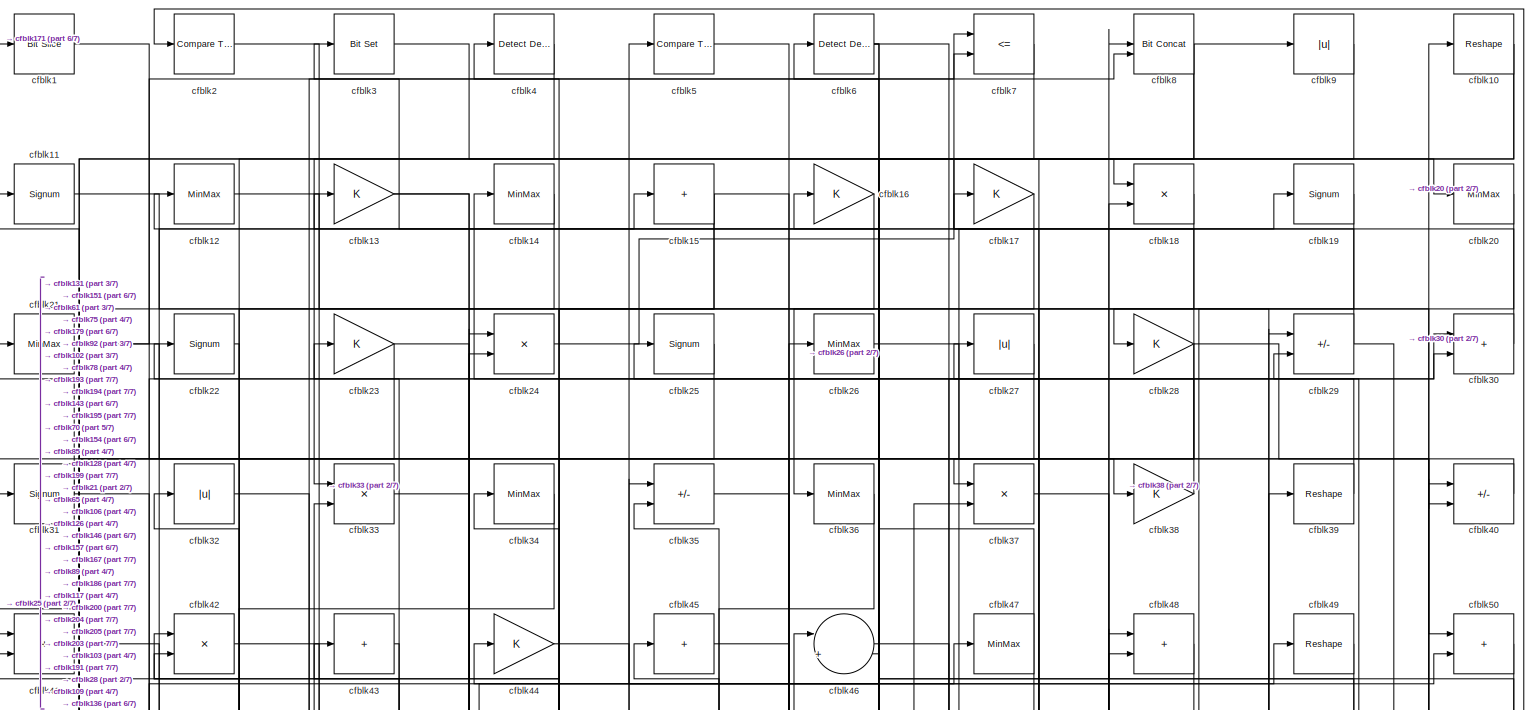
[diagram: root canvas - part 1/7, full width, top band]
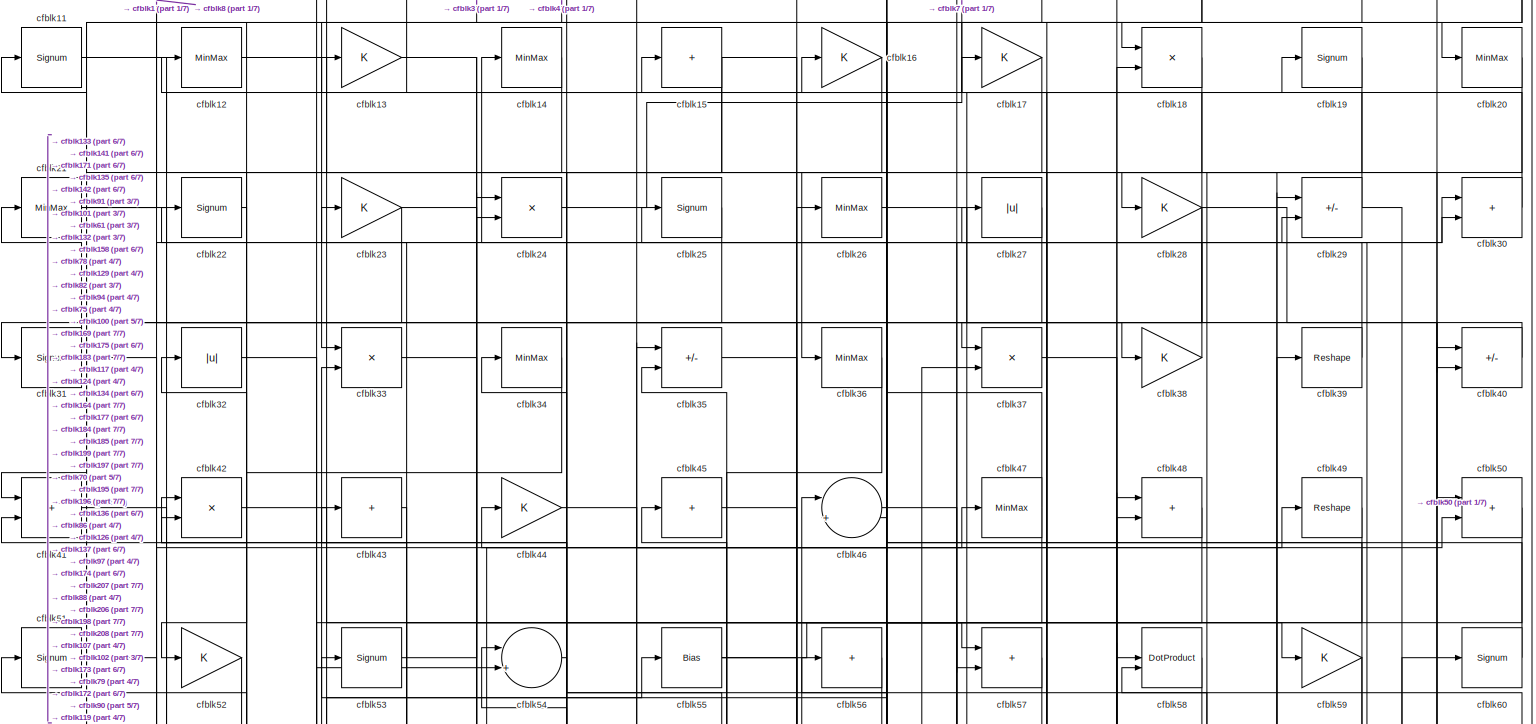
[diagram: root canvas - part 2/7, full width, top band]
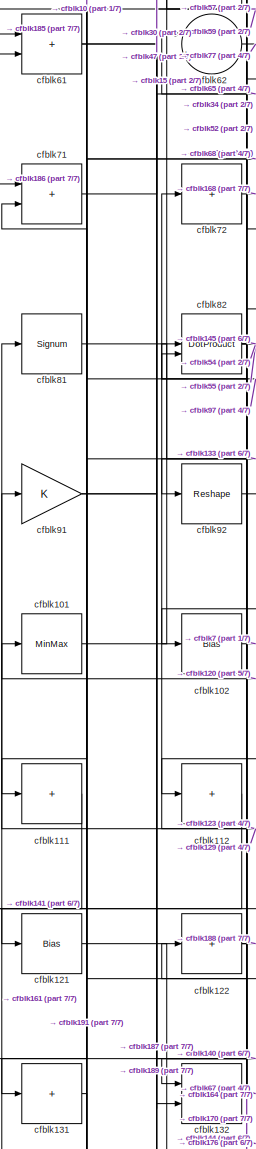
[diagram: root canvas - part 3/7, middle left region]
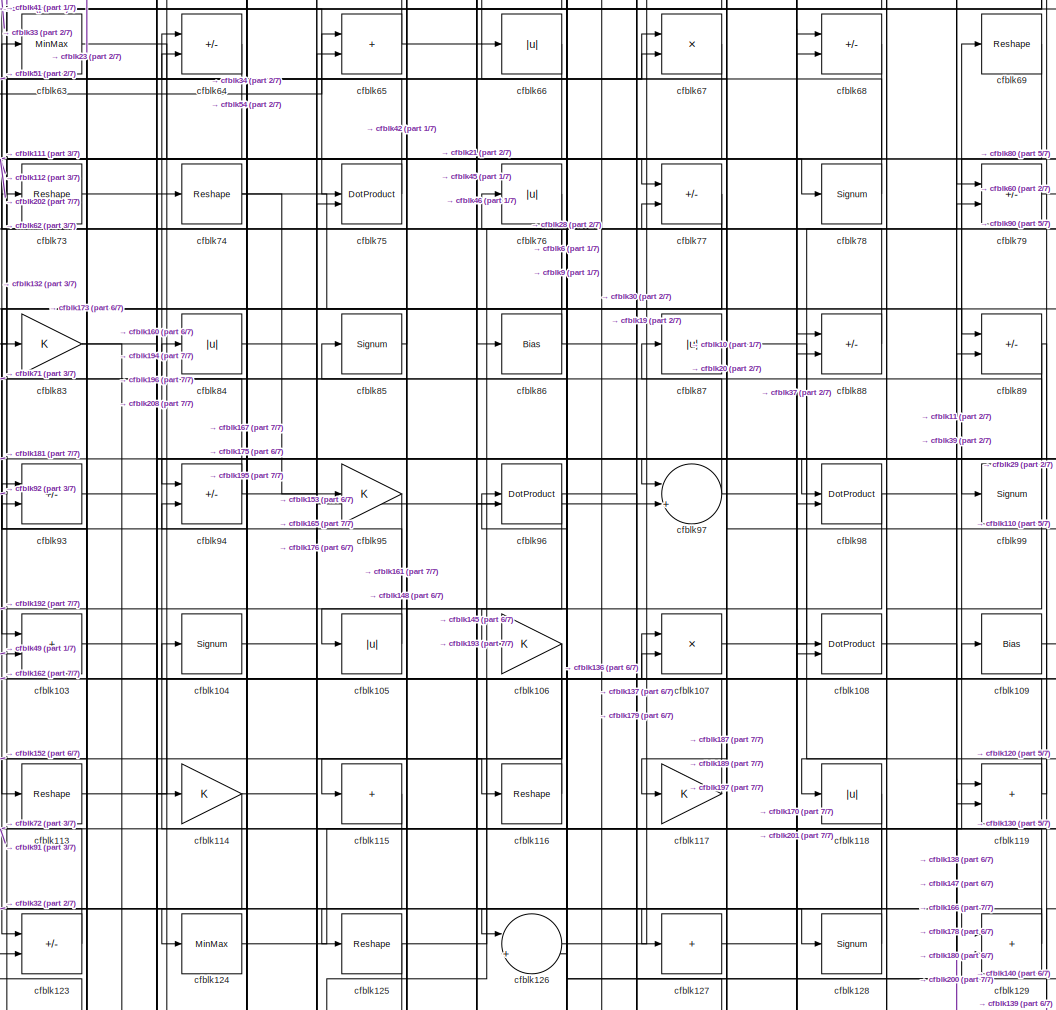
[diagram: root canvas - part 4/7, central region]
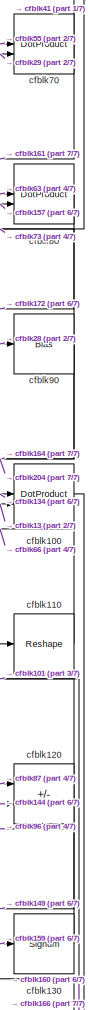
[diagram: root canvas - part 5/7, middle right region]
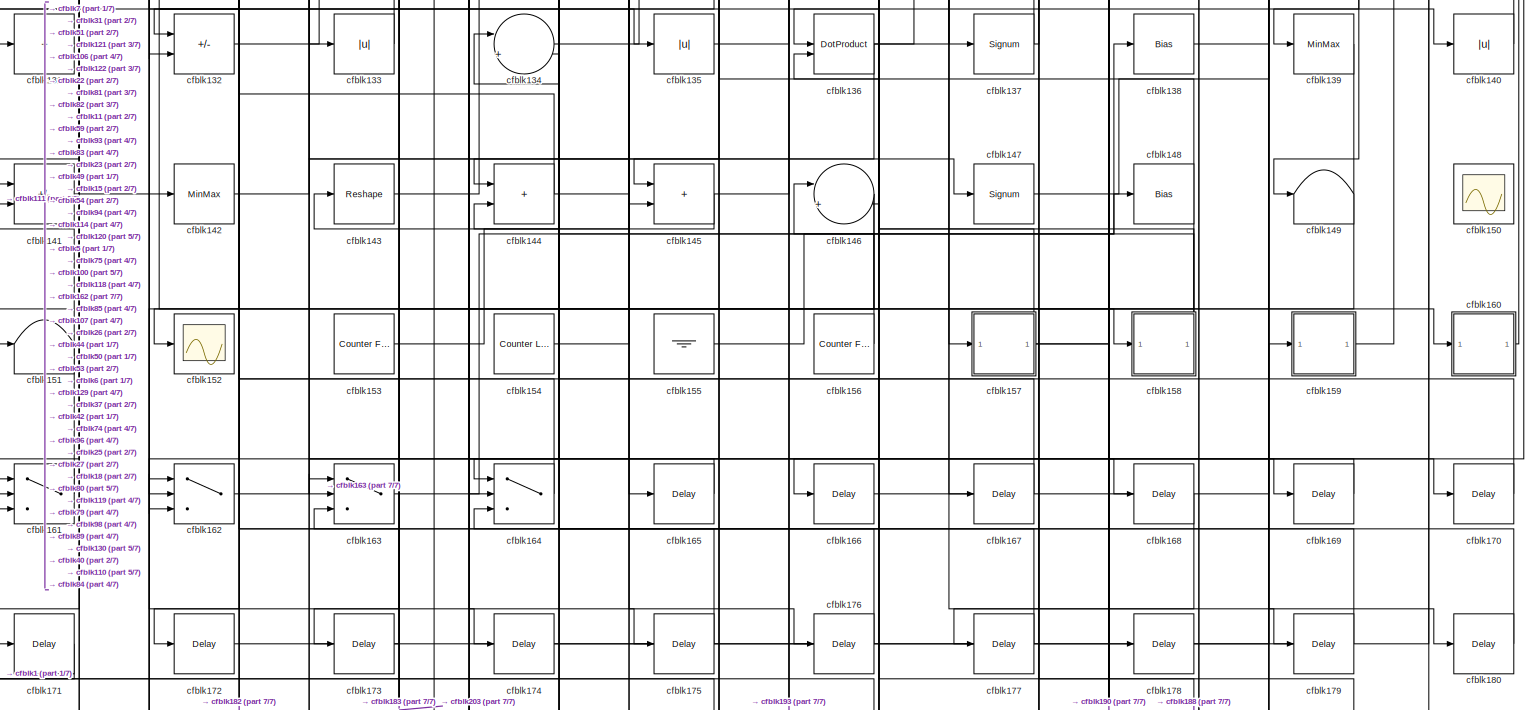
[diagram: root canvas - part 6/7, full width, bottom band]
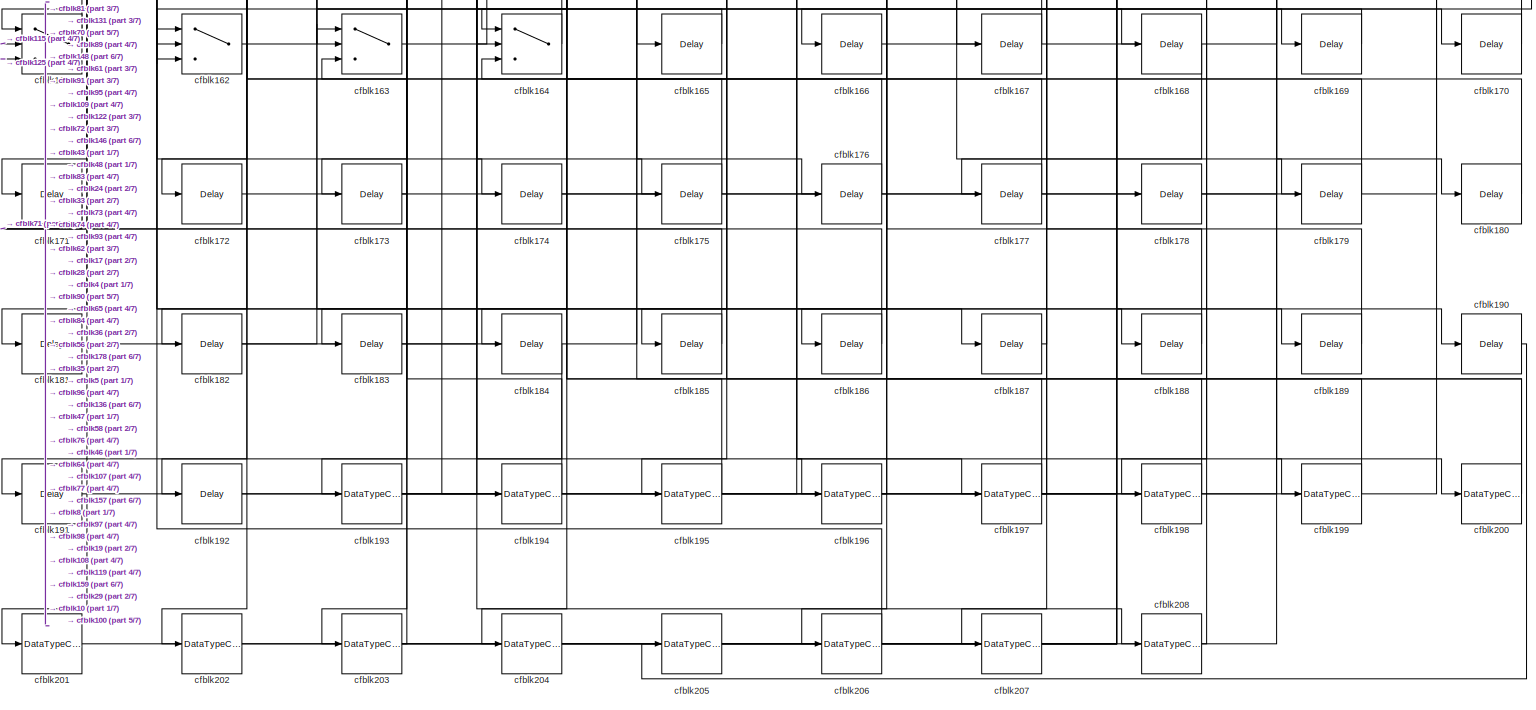
[diagram: root canvas - part 7/7, full width, bottom band]
MODEL slx_a3a0ca1e1958
KIND model
CONFIG AbsTol = auto
CONFIG EnableMultiTasking = off
CONFIG FixedStep = auto
CONFIG MaxStep = auto
CONFIG MinStep = auto
CONFIG RelTol = 1e-3
CONFIG SampleTimeConstraint = Unconstrained
CONFIG SolverName = VariableStepAuto
CONFIG StartTime = 0.0
CONFIG StopTime = 10.0
BLOCK [Reference] cfblk1  REF=hdlsllib/Logic and Bit
Operations/Bit Slice
  SourceBlock = hdlsllib/Logic and Bit\nOperations/Bit Slice
  SourceType = Bit Slice
BLOCK [Reshape] cfblk10
BLOCK [DotProduct] cfblk100
  OutDataTypeStr = Inherit: Inherit via internal rule
BLOCK [MinMax] cfblk101
BLOCK [Bias] cfblk102
  Bias = 0.0
  SaturateOnIntegerOverflow = off
BLOCK [Sum] cfblk103
  IconShape = rectangular
BLOCK [Signum] cfblk104
BLOCK [Abs] cfblk105
  SaturateOnIntegerOverflow = off
BLOCK [Gain] cfblk106
BLOCK [Product] cfblk107
  Inputs = */
  RndMeth = Zero
  SaturateOnIntegerOverflow = on
BLOCK [DotProduct] cfblk108
  OutDataTypeStr = Inherit: Inherit via internal rule
BLOCK [Bias] cfblk109
  Bias = 0.0
  SaturateOnIntegerOverflow = off
BLOCK [Signum] cfblk11
BLOCK [Reshape] cfblk110
BLOCK [Sum] cfblk111
  IconShape = rectangular
  Inputs = +
BLOCK [Sum] cfblk112
  IconShape = rectangular
  Inputs = +
BLOCK [Reshape] cfblk113
BLOCK [Gain] cfblk114
BLOCK [Sum] cfblk115
  IconShape = rectangular
  Inputs = +
BLOCK [Reshape] cfblk116
BLOCK [Gain] cfblk117
BLOCK [Abs] cfblk118
  SaturateOnIntegerOverflow = off
BLOCK [Sum] cfblk119
  IconShape = rectangular
BLOCK [MinMax] cfblk12
BLOCK [Sum] cfblk120
  IconShape = rectangular
  Inputs = +-
BLOCK [Bias] cfblk121
  Bias = 0.0
  SaturateOnIntegerOverflow = off
BLOCK [Sum] cfblk122
  IconShape = rectangular
  Inputs = +
BLOCK [Sum] cfblk123
  IconShape = rectangular
  Inputs = +-
BLOCK [MinMax] cfblk124
BLOCK [Reshape] cfblk125
BLOCK [Sum] cfblk126
  Inputs = |++
BLOCK [Sum] cfblk127
  IconShape = rectangular
  Inputs = +
BLOCK [Signum] cfblk128
BLOCK [Sum] cfblk129
  IconShape = rectangular
BLOCK [Gain] cfblk13
BLOCK [Signum] cfblk130
BLOCK [Sum] cfblk131
  IconShape = rectangular
  Inputs = +
BLOCK [Sum] cfblk132
  IconShape = rectangular
  Inputs = +-
BLOCK [Abs] cfblk133
  SaturateOnIntegerOverflow = off
BLOCK [Sum] cfblk134
  Inputs = |++
BLOCK [Abs] cfblk135
  SaturateOnIntegerOverflow = off
BLOCK [DotProduct] cfblk136
  OutDataTypeStr = Inherit: Inherit via internal rule
BLOCK [Signum] cfblk137
BLOCK [Bias] cfblk138
  Bias = 0.0
  SaturateOnIntegerOverflow = off
BLOCK [MinMax] cfblk139
BLOCK [MinMax] cfblk14
BLOCK [Abs] cfblk140
  SaturateOnIntegerOverflow = off
BLOCK [Sum] cfblk141
  IconShape = rectangular
  Inputs = +-
BLOCK [MinMax] cfblk142
BLOCK [Reshape] cfblk143
BLOCK [Sum] cfblk144
  IconShape = rectangular
BLOCK [Sum] cfblk145
  IconShape = rectangular
BLOCK [Sum] cfblk146
  Inputs = |++
BLOCK [Signum] cfblk147
BLOCK [Bias] cfblk148
  Bias = 0.0
  SaturateOnIntegerOverflow = off
BLOCK [Terminator] cfblk149
BLOCK [Sum] cfblk15
  IconShape = rectangular
  Inputs = +
BLOCK [Scope] cfblk150
  Floating = on
  NumInputPorts = 1
  ScopeSpecificationString = Simulink.scopes.TimeScopeBlockCfg('CurrentConfiguration', extmgr.ConfigurationSet(extmgr.Configuration('Core','General UI',true,'FigureColor',[0.156862745098039 0.156862745098039 0.156862745098039]),extmgr.Configuration('Core','Source UI',true),extmgr.Configuration('Sources','WiredSimulink',true,'DataLoggingVariableName','ScopeData1','DataLoggingSaveFormat','StructureWithTime','DataLoggingLimitDat...<+2713ch>
BLOCK [Terminator] cfblk151
BLOCK [Scope] cfblk152
  Floating = off
  NumInputPorts = 1
  ScopeSpecificationString = Simulink.scopes.TimeScopeBlockCfg('CurrentConfiguration', extmgr.ConfigurationSet(extmgr.Configuration('Core','General UI',true),extmgr.Configuration('Core','Source UI',true),extmgr.Configuration('Sources','WiredSimulink',true,'DataLoggingVariableName','ScopeData2','DataLoggingSaveFormat','Array','DataLoggingLimitDataPoints',true,'DataLoggingDecimation','1'),extmgr.Configuration('Visuals','Time Do...<+868ch>
BLOCK [Reference] cfblk153  REF=hdlsllib/Sources/Counter
Free-Running
  SourceBlock = hdlsllib/Sources/Counter\nFree-Running
  SourceType = Counter Free-Running
BLOCK [Reference] cfblk154  REF=hdlsllib/Sources/Counter
Limited
  SourceBlock = hdlsllib/Sources/Counter\nLimited
  SourceType = Counter Limited
BLOCK [Ground] cfblk155
BLOCK [Reference] cfblk156  REF=hdlsllib/Sources/Counter
Free-Running
  SourceBlock = hdlsllib/Sources/Counter\nFree-Running
  SourceType = Counter Free-Running
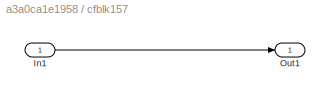
BLOCK [SubSystem] cfblk157
  LibrarySourceBlock = hdlsllib/Ports &\nSubsystems/Subsystem
BLOCK [Inport] cfblk157/In1
BLOCK [Outport] cfblk157/Out1
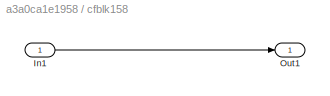
BLOCK [SubSystem] cfblk158
  LibrarySourceBlock = hdlsllib/Ports &\nSubsystems/Subsystem
BLOCK [Inport] cfblk158/In1
BLOCK [Outport] cfblk158/Out1
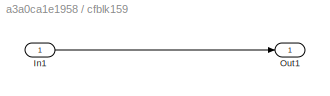
BLOCK [SubSystem] cfblk159
  LibrarySourceBlock = hdlsllib/Ports &\nSubsystems/Subsystem
BLOCK [Inport] cfblk159/In1
BLOCK [Outport] cfblk159/Out1
BLOCK [Gain] cfblk16
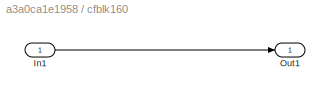
BLOCK [SubSystem] cfblk160
  LibrarySourceBlock = hdlsllib/Ports &\nSubsystems/Subsystem
BLOCK [Inport] cfblk160/In1
BLOCK [Outport] cfblk160/Out1
BLOCK [Switch] cfblk161
  InputSameDT = off
  SaturateOnIntegerOverflow = off
BLOCK [Switch] cfblk162
  InputSameDT = off
  SaturateOnIntegerOverflow = off
BLOCK [Switch] cfblk163
  InputSameDT = off
  SaturateOnIntegerOverflow = off
BLOCK [Switch] cfblk164
  InputSameDT = off
  SaturateOnIntegerOverflow = off
BLOCK [Delay] cfblk165
  InputPortMap = u0
  SampleTime = 1
BLOCK [Delay] cfblk166
  InputPortMap = u0
  SampleTime = 1
BLOCK [Delay] cfblk167
  InputPortMap = u0
  SampleTime = 1
BLOCK [Delay] cfblk168
  InputPortMap = u0
  SampleTime = 1
BLOCK [Delay] cfblk169
  InputPortMap = u0
  SampleTime = 1
BLOCK [Gain] cfblk17
BLOCK [Delay] cfblk170
  InputPortMap = u0
  SampleTime = 1
BLOCK [Delay] cfblk171
  InputPortMap = u0
  SampleTime = 1
BLOCK [Delay] cfblk172
  InputPortMap = u0
  SampleTime = 1
BLOCK [Delay] cfblk173
  InputPortMap = u0
  SampleTime = 1
BLOCK [Delay] cfblk174
  InputPortMap = u0
  SampleTime = 1
BLOCK [Delay] cfblk175
  InputPortMap = u0
  SampleTime = 1
BLOCK [Delay] cfblk176
  InputPortMap = u0
  SampleTime = 1
BLOCK [Delay] cfblk177
  InputPortMap = u0
  SampleTime = 1
BLOCK [Delay] cfblk178
  InputPortMap = u0
  SampleTime = 1
BLOCK [Delay] cfblk179
  InputPortMap = u0
  SampleTime = 1
BLOCK [Product] cfblk18
  Inputs = */
  RndMeth = Zero
  SaturateOnIntegerOverflow = on
BLOCK [Delay] cfblk180
  InputPortMap = u0
  SampleTime = 1
BLOCK [Delay] cfblk181
  InputPortMap = u0
  SampleTime = 1
BLOCK [Delay] cfblk182
  InputPortMap = u0
  SampleTime = 1
BLOCK [Delay] cfblk183
  InputPortMap = u0
  SampleTime = 1
BLOCK [Delay] cfblk184
  InputPortMap = u0
  SampleTime = 1
BLOCK [Delay] cfblk185
  InputPortMap = u0
  SampleTime = 1
BLOCK [Delay] cfblk186
  InputPortMap = u0
  SampleTime = 1
BLOCK [Delay] cfblk187
  InputPortMap = u0
  SampleTime = 1
BLOCK [Delay] cfblk188
  InputPortMap = u0
  SampleTime = 1
BLOCK [Delay] cfblk189
  InputPortMap = u0
  SampleTime = 1
BLOCK [Signum] cfblk19
BLOCK [Delay] cfblk190
  InputPortMap = u0
  SampleTime = 1
BLOCK [Delay] cfblk191
  InputPortMap = u0
  SampleTime = 1
BLOCK [Delay] cfblk192
  InputPortMap = u0
  SampleTime = 1
BLOCK [DataTypeConversion] cfblk193
  RndMeth = Floor
  SaturateOnIntegerOverflow = off
BLOCK [DataTypeConversion] cfblk194
  OutDataTypeStr = uint8
  RndMeth = Floor
  SaturateOnIntegerOverflow = off
BLOCK [DataTypeConversion] cfblk195
  RndMeth = Floor
  SaturateOnIntegerOverflow = off
BLOCK [DataTypeConversion] cfblk196
  OutDataTypeStr = uint8
  RndMeth = Floor
  SaturateOnIntegerOverflow = off
BLOCK [DataTypeConversion] cfblk197
  RndMeth = Floor
  SaturateOnIntegerOverflow = off
BLOCK [DataTypeConversion] cfblk198
  OutDataTypeStr = uint8
  RndMeth = Floor
  SaturateOnIntegerOverflow = off
BLOCK [DataTypeConversion] cfblk199
  OutDataTypeStr = uint8
  RndMeth = Floor
  SaturateOnIntegerOverflow = off
BLOCK [Reference] cfblk2  REF=hdlsllib/Logic and Bit
Operations/Compare
To Constant
  SourceBlock = hdlsllib/Logic and Bit\nOperations/Compare\nTo Constant
  SourceType = Compare To Constant
BLOCK [MinMax] cfblk20
BLOCK [DataTypeConversion] cfblk200
  RndMeth = Floor
  SaturateOnIntegerOverflow = off
BLOCK [DataTypeConversion] cfblk201
  OutDataTypeStr = uint8
  RndMeth = Floor
  SaturateOnIntegerOverflow = off
BLOCK [DataTypeConversion] cfblk202
  OutDataTypeStr = uint8
  RndMeth = Floor
  SaturateOnIntegerOverflow = off
BLOCK [DataTypeConversion] cfblk203
  RndMeth = Floor
  SaturateOnIntegerOverflow = off
BLOCK [DataTypeConversion] cfblk204
  OutDataTypeStr = uint8
  RndMeth = Floor
  SaturateOnIntegerOverflow = off
BLOCK [DataTypeConversion] cfblk205
  OutDataTypeStr = uint8
  RndMeth = Floor
  SaturateOnIntegerOverflow = off
BLOCK [DataTypeConversion] cfblk206
  OutDataTypeStr = uint8
  RndMeth = Floor
  SaturateOnIntegerOverflow = off
BLOCK [DataTypeConversion] cfblk207
  OutDataTypeStr = uint8
  RndMeth = Floor
  SaturateOnIntegerOverflow = off
BLOCK [DataTypeConversion] cfblk208
  OutDataTypeStr = uint8
  RndMeth = Floor
  SaturateOnIntegerOverflow = off
BLOCK [MinMax] cfblk21
BLOCK [Signum] cfblk22
BLOCK [Gain] cfblk23
BLOCK [Product] cfblk24
  Inputs = */
  RndMeth = Zero
  SaturateOnIntegerOverflow = on
BLOCK [Signum] cfblk25
BLOCK [MinMax] cfblk26
BLOCK [Abs] cfblk27
  SaturateOnIntegerOverflow = off
BLOCK [Gain] cfblk28
BLOCK [Sum] cfblk29
  IconShape = rectangular
  Inputs = +-
BLOCK [Reference] cfblk3  REF=simulink/Logic and Bit
Operations/Bit Set
  LibrarySourceBlock = hdlsllib/Logic and Bit\nOperations/Bit Set
  SourceBlock = simulink/Logic and Bit\nOperations/Bit Set
  SourceType = Bit Set
BLOCK [Sum] cfblk30
  IconShape = rectangular
BLOCK [Signum] cfblk31
BLOCK [Abs] cfblk32
  SaturateOnIntegerOverflow = off
BLOCK [Product] cfblk33
  Inputs = */
  RndMeth = Zero
  SaturateOnIntegerOverflow = on
BLOCK [MinMax] cfblk34
BLOCK [Sum] cfblk35
  IconShape = rectangular
  Inputs = +-
BLOCK [MinMax] cfblk36
BLOCK [Product] cfblk37
  Inputs = */
  RndMeth = Zero
  SaturateOnIntegerOverflow = on
BLOCK [Gain] cfblk38
BLOCK [Reshape] cfblk39
BLOCK [Reference] cfblk4  REF=simulink/Logic and Bit
Operations/Detect
Decrease
  LibrarySourceBlock = hdlsllib/Logic and Bit\nOperations/Detect\nDecrease
  SourceBlock = simulink/Logic and Bit\nOperations/Detect\nDecrease
  SourceType = Detect Decrease
BLOCK [Sum] cfblk40
  IconShape = rectangular
  Inputs = +-
BLOCK [Sum] cfblk41
  IconShape = rectangular
BLOCK [Product] cfblk42
  Inputs = */
  RndMeth = Zero
  SaturateOnIntegerOverflow = on
BLOCK [Sum] cfblk43
  IconShape = rectangular
  Inputs = +
BLOCK [Gain] cfblk44
BLOCK [Sum] cfblk45
  IconShape = rectangular
  Inputs = +
BLOCK [Sum] cfblk46
  Inputs = |++
BLOCK [MinMax] cfblk47
BLOCK [Sum] cfblk48
  IconShape = rectangular
BLOCK [Reshape] cfblk49
BLOCK [Reference] cfblk5  REF=hdlsllib/Logic and Bit
Operations/Compare
To Constant
  SourceBlock = hdlsllib/Logic and Bit\nOperations/Compare\nTo Constant
  SourceType = Compare To Constant
BLOCK [Sum] cfblk50
  IconShape = rectangular
BLOCK [Signum] cfblk51
BLOCK [Gain] cfblk52
BLOCK [Signum] cfblk53
BLOCK [Sum] cfblk54
  Inputs = |++
BLOCK [Bias] cfblk55
  Bias = 0.0
  SaturateOnIntegerOverflow = off
BLOCK [Sum] cfblk56
  IconShape = rectangular
  Inputs = +
BLOCK [Sum] cfblk57
  IconShape = rectangular
BLOCK [DotProduct] cfblk58
  OutDataTypeStr = Inherit: Inherit via internal rule
BLOCK [Gain] cfblk59
BLOCK [Reference] cfblk6  REF=simulink/Logic and Bit
Operations/Detect
Decrease
  LibrarySourceBlock = hdlsllib/Logic and Bit\nOperations/Detect\nDecrease
  SourceBlock = simulink/Logic and Bit\nOperations/Detect\nDecrease
  SourceType = Detect Decrease
BLOCK [Signum] cfblk60
BLOCK [Sum] cfblk61
  IconShape = rectangular
BLOCK [Sum] cfblk62
  Inputs = |++
BLOCK [MinMax] cfblk63
BLOCK [Sum] cfblk64
  IconShape = rectangular
  Inputs = +-
BLOCK [Sum] cfblk65
  IconShape = rectangular
BLOCK [Abs] cfblk66
  SaturateOnIntegerOverflow = off
BLOCK [Product] cfblk67
  Inputs = */
  RndMeth = Zero
  SaturateOnIntegerOverflow = on
BLOCK [Sum] cfblk68
  IconShape = rectangular
  Inputs = +-
BLOCK [Reshape] cfblk69
BLOCK [RelationalOperator] cfblk7
  InputSameDT = off
  Operator = <=
  OutDataTypeStr = boolean
BLOCK [DotProduct] cfblk70
  OutDataTypeStr = Inherit: Inherit via internal rule
BLOCK [Sum] cfblk71
  IconShape = rectangular
BLOCK [Sum] cfblk72
  IconShape = rectangular
  Inputs = +
BLOCK [Reshape] cfblk73
BLOCK [Reshape] cfblk74
BLOCK [DotProduct] cfblk75
  OutDataTypeStr = Inherit: Inherit via internal rule
BLOCK [Abs] cfblk76
  SaturateOnIntegerOverflow = off
BLOCK [Sum] cfblk77
  IconShape = rectangular
  Inputs = +-
BLOCK [Signum] cfblk78
BLOCK [Sum] cfblk79
  IconShape = rectangular
  Inputs = +-
BLOCK [Reference] cfblk8  REF=hdlsllib/Logic and Bit
Operations/Bit Concat
  SourceBlock = hdlsllib/Logic and Bit\nOperations/Bit Concat
  SourceType = Bit Concat
BLOCK [DotProduct] cfblk80
  OutDataTypeStr = Inherit: Inherit via internal rule
BLOCK [Signum] cfblk81
BLOCK [DotProduct] cfblk82
  OutDataTypeStr = Inherit: Inherit via internal rule
BLOCK [Gain] cfblk83
BLOCK [Abs] cfblk84
  SaturateOnIntegerOverflow = off
BLOCK [Signum] cfblk85
BLOCK [Bias] cfblk86
  Bias = 0.0
  SaturateOnIntegerOverflow = off
BLOCK [Abs] cfblk87
  SaturateOnIntegerOverflow = off
BLOCK [Sum] cfblk88
  IconShape = rectangular
  Inputs = +-
BLOCK [Sum] cfblk89
  IconShape = rectangular
  Inputs = +-
BLOCK [Abs] cfblk9
  SaturateOnIntegerOverflow = off
BLOCK [Bias] cfblk90
  Bias = 0.0
  SaturateOnIntegerOverflow = off
BLOCK [Gain] cfblk91
BLOCK [Reshape] cfblk92
BLOCK [Sum] cfblk93
  IconShape = rectangular
  Inputs = +-
BLOCK [Sum] cfblk94
  IconShape = rectangular
  Inputs = +-
BLOCK [Gain] cfblk95
BLOCK [DotProduct] cfblk96
  OutDataTypeStr = Inherit: Inherit via internal rule
BLOCK [Sum] cfblk97
  Inputs = |++
BLOCK [DotProduct] cfblk98
  OutDataTypeStr = Inherit: Inherit via internal rule
BLOCK [Signum] cfblk99
LINE cfblk100:1 -> cfblk166:1
LINE cfblk101:1 -> cfblk15:1
LINE cfblk102:1 -> cfblk7:2
LINE cfblk103:1 -> cfblk114:1
LINE cfblk104:1 -> cfblk116:1
LINE cfblk105:1 -> cfblk83:1
NET cfblk106:1 -> cfblk115:1, cfblk152:1
LINE cfblk107:1 -> cfblk39:1
LINE cfblk108:1 -> cfblk200:1
LINE cfblk109:1 -> cfblk2:1
NET cfblk10:1 -> cfblk117:1, cfblk131:1
LINE cfblk110:1 -> cfblk66:1
LINE cfblk111:1 -> cfblk141:2
LINE cfblk112:1 -> cfblk121:1
LINE cfblk113:1 -> cfblk68:2
NET cfblk114:1 -> cfblk123:2, cfblk176:1
LINE cfblk115:1 -> cfblk161:2
LINE cfblk116:1 -> cfblk93:1
LINE cfblk117:1 -> cfblk34:1
LINE cfblk118:1 -> cfblk145:1
NET cfblk119:1 -> cfblk29:2, cfblk64:1
LINE cfblk11:1 -> cfblk79:1
NET cfblk120:1 -> cfblk101:1, cfblk149:1
LINE cfblk121:1 -> cfblk140:1
NET cfblk122:1 -> cfblk188:1, cfblk82:1
LINE cfblk123:1 -> cfblk72:1
LINE cfblk124:1 -> cfblk69:1
NET cfblk125:1 -> cfblk161:3, cfblk68:1
LINE cfblk126:1 -> cfblk19:1
LINE cfblk127:1 -> cfblk88:2
LINE cfblk128:1 -> cfblk104:1
NET cfblk129:1 -> cfblk127:1, cfblk91:1
LINE cfblk12:1 -> cfblk40:2
LINE cfblk130:1 -> cfblk96:1
LINE cfblk131:1 -> cfblk191:1
LINE cfblk132:1 -> cfblk67:1
LINE cfblk133:1 -> cfblk11:1
LINE cfblk134:1 -> cfblk100:1
LINE cfblk135:1 -> cfblk26:1
NET cfblk136:1 -> cfblk129:2, cfblk144:1, cfblk37:2
NET cfblk137:1 -> cfblk25:1, cfblk27:1
LINE cfblk138:1 -> cfblk79:2
LINE cfblk139:1 -> cfblk177:1
NET cfblk13:1 -> cfblk100:2, cfblk57:1
LINE cfblk140:1 -> cfblk84:1
LINE cfblk141:1 -> cfblk174:1
LINE cfblk142:1 -> cfblk147:1
LINE cfblk143:1 -> cfblk49:1
NET cfblk144:1 -> cfblk120:2, cfblk122:1
NET cfblk145:1 -> cfblk107:1, cfblk143:1
NET cfblk146:1 -> cfblk182:1, cfblk183:1
LINE cfblk147:1 -> cfblk119:2
NET cfblk148:1 -> cfblk162:3, cfblk85:1
LINE cfblk14:1 -> cfblk52:1
LINE cfblk153:1 -> cfblk75:2
LINE cfblk154:1 -> cfblk5:1
LINE cfblk155:1 -> cfblk138:1
LINE cfblk156:1 -> cfblk134:1
LINE cfblk157/In1:1 -> cfblk157/Out1:1
NET cfblk157:1 -> cfblk190:1, cfblk44:1, cfblk80:2
LINE cfblk158/In1:1 -> cfblk158/Out1:1
NET cfblk158:1 -> cfblk146:1, cfblk53:1
LINE cfblk159/In1:1 -> cfblk159/Out1:1
LINE cfblk159:1 -> cfblk130:1
NET cfblk15:1 -> cfblk134:2, cfblk171:1, cfblk57:2
LINE cfblk160/In1:1 -> cfblk160/Out1:1
LINE cfblk160:1 -> cfblk110:1
LINE cfblk161:1 -> cfblk81:1
LINE cfblk162:1 -> cfblk109:1
LINE cfblk163:1 -> cfblk148:1
LINE cfblk164:1 -> cfblk62:2
LINE cfblk165:1 -> cfblk163:2
LINE cfblk166:1 -> cfblk119:1
LINE cfblk167:1 -> cfblk64:2
LINE cfblk168:1 -> cfblk207:1
LINE cfblk169:1 -> cfblk162:2
LINE cfblk16:1 -> cfblk36:1
LINE cfblk170:1 -> cfblk62:1
LINE cfblk171:1 -> cfblk1:1
LINE cfblk172:1 -> cfblk40:1
LINE cfblk173:1 -> cfblk93:2
LINE cfblk174:1 -> cfblk18:2
LINE cfblk175:1 -> cfblk94:2
LINE cfblk176:1 -> cfblk82:2
LINE cfblk177:1 -> cfblk54:1
LINE cfblk178:1 -> cfblk89:2
LINE cfblk179:1 -> cfblk42:2
LINE cfblk17:1 -> cfblk184:1
LINE cfblk180:1 -> cfblk144:2
LINE cfblk181:1 -> cfblk65:2
LINE cfblk182:1 -> cfblk163:1
LINE cfblk183:1 -> cfblk24:2
LINE cfblk184:1 -> cfblk201:1
LINE cfblk185:1 -> cfblk61:1
LINE cfblk186:1 -> cfblk71:1
LINE cfblk187:1 -> cfblk107:2
LINE cfblk188:1 -> cfblk136:2
LINE cfblk189:1 -> cfblk77:2
LINE cfblk18:1 -> cfblk28:1
LINE cfblk190:1 -> cfblk205:1
LINE cfblk191:1 -> cfblk10:1
LINE cfblk192:1 -> cfblk74:1
NET cfblk193:1 -> cfblk178:1, cfblk96:2
LINE cfblk194:1 -> cfblk43:1
NET cfblk195:1 -> cfblk4:1, cfblk98:2
LINE cfblk196:1 -> cfblk56:1
NET cfblk197:1 -> cfblk17:1, cfblk29:1, cfblk76:1
LINE cfblk198:1 -> cfblk35:1
LINE cfblk199:1 -> cfblk35:2
LINE cfblk19:1 -> cfblk198:1
LINE cfblk1:1 -> cfblk38:1
NET cfblk200:1 -> cfblk164:3, cfblk8:1
LINE cfblk201:1 -> cfblk108:1
LINE cfblk202:1 -> cfblk108:2
NET cfblk203:1 -> cfblk159:1, cfblk163:3
LINE cfblk204:1 -> cfblk48:1
LINE cfblk205:1 -> cfblk48:2
LINE cfblk206:1 -> cfblk162:1
LINE cfblk207:1 -> cfblk58:1
LINE cfblk208:1 -> cfblk58:2
LINE cfblk20:1 -> cfblk97:1
NET cfblk21:1 -> cfblk86:1, cfblk8:2
LINE cfblk22:1 -> cfblk158:1
NET cfblk23:1 -> cfblk141:1, cfblk175:1
LINE cfblk24:1 -> cfblk18:1
LINE cfblk25:1 -> cfblk41:1
LINE cfblk26:1 -> cfblk50:1
LINE cfblk27:1 -> cfblk31:1
NET cfblk28:1 -> cfblk126:1, cfblk164:1, cfblk3:1, cfblk90:1
NET cfblk29:1 -> cfblk16:1, cfblk70:2
LINE cfblk2:1 -> cfblk78:1
LINE cfblk30:1 -> cfblk7:1
NET cfblk31:1 -> cfblk135:1, cfblk21:1
LINE cfblk32:1 -> cfblk129:1
LINE cfblk33:1 -> cfblk169:1
LINE cfblk34:1 -> cfblk132:1
LINE cfblk35:1 -> cfblk197:1
LINE cfblk36:1 -> cfblk185:1
LINE cfblk37:1 -> cfblk88:1
LINE cfblk38:1 -> cfblk22:1
LINE cfblk39:1 -> cfblk14:1
LINE cfblk3:1 -> cfblk20:1
LINE cfblk40:1 -> cfblk37:1
LINE cfblk41:1 -> cfblk75:1
LINE cfblk42:1 -> cfblk157:1
LINE cfblk43:1 -> cfblk193:1
LINE cfblk44:1 -> cfblk50:2
LINE cfblk45:1 -> cfblk128:1
LINE cfblk46:1 -> cfblk167:1
NET cfblk47:1 -> cfblk186:1, cfblk6:1
LINE cfblk48:1 -> cfblk203:1
LINE cfblk49:1 -> cfblk103:2
LINE cfblk4:1 -> cfblk33:1
LINE cfblk50:1 -> cfblk136:1
LINE cfblk51:1 -> cfblk142:1
LINE cfblk52:1 -> cfblk61:2
LINE cfblk53:1 -> cfblk24:1
LINE cfblk54:1 -> cfblk124:1
NET cfblk55:1 -> cfblk59:1, cfblk70:1
LINE cfblk56:1 -> cfblk195:1
LINE cfblk57:1 -> cfblk132:2
LINE cfblk58:1 -> cfblk206:1
NET cfblk59:1 -> cfblk102:1, cfblk12:1, cfblk173:1
LINE cfblk5:1 -> cfblk199:1
LINE cfblk60:1 -> cfblk13:1
NET cfblk61:1 -> cfblk187:1, cfblk47:1
LINE cfblk62:1 -> cfblk77:1
LINE cfblk63:1 -> cfblk80:1
LINE cfblk64:1 -> cfblk202:1
NET cfblk65:1 -> cfblk42:1, cfblk46:1
LINE cfblk66:1 -> cfblk113:1
LINE cfblk67:1 -> cfblk112:1
LINE cfblk68:1 -> cfblk111:1
LINE cfblk69:1 -> cfblk99:1
NET cfblk6:1 -> cfblk126:2, cfblk146:2, cfblk89:1
NET cfblk70:1 -> cfblk161:1, cfblk41:2
LINE cfblk71:1 -> cfblk65:1
LINE cfblk72:1 -> cfblk168:1
LINE cfblk73:1 -> cfblk196:1
NET cfblk74:1 -> cfblk137:1, cfblk95:1
LINE cfblk75:1 -> cfblk23:1
LINE cfblk76:1 -> cfblk103:1
NET cfblk77:1 -> cfblk123:1, cfblk94:1
LINE cfblk78:1 -> cfblk51:1
LINE cfblk79:1 -> cfblk60:1
LINE cfblk7:1 -> cfblk151:1
LINE cfblk80:1 -> cfblk172:1
LINE cfblk81:1 -> cfblk133:1
NET cfblk82:1 -> cfblk145:2, cfblk54:2, cfblk55:1
NET cfblk83:1 -> cfblk160:1, cfblk194:1
LINE cfblk84:1 -> cfblk165:1
LINE cfblk85:1 -> cfblk45:1
NET cfblk86:1 -> cfblk30:2, cfblk32:1
LINE cfblk87:1 -> cfblk120:1
LINE cfblk88:1 -> cfblk63:1
NET cfblk89:1 -> cfblk139:1, cfblk181:1, cfblk98:1
NET cfblk8:1 -> cfblk46:2, cfblk92:1, cfblk9:1
NET cfblk90:1 -> cfblk164:2, cfblk204:1, cfblk73:1
NET cfblk91:1 -> cfblk189:1, cfblk30:1
LINE cfblk92:1 -> cfblk67:2
LINE cfblk93:1 -> cfblk208:1
NET cfblk94:1 -> cfblk33:2, cfblk97:2
LINE cfblk95:1 -> cfblk192:1
NET cfblk96:1 -> cfblk125:1, cfblk179:1
NET cfblk97:1 -> cfblk170:1, cfblk71:2
NET cfblk98:1 -> cfblk105:1, cfblk180:1
NET cfblk99:1 -> cfblk118:1, cfblk87:1
LINE cfblk9:1 -> cfblk106:1
note: NET lines group one-source signal fan-out (src -> all destinations, sorted); 1:1 wires keep LINE
